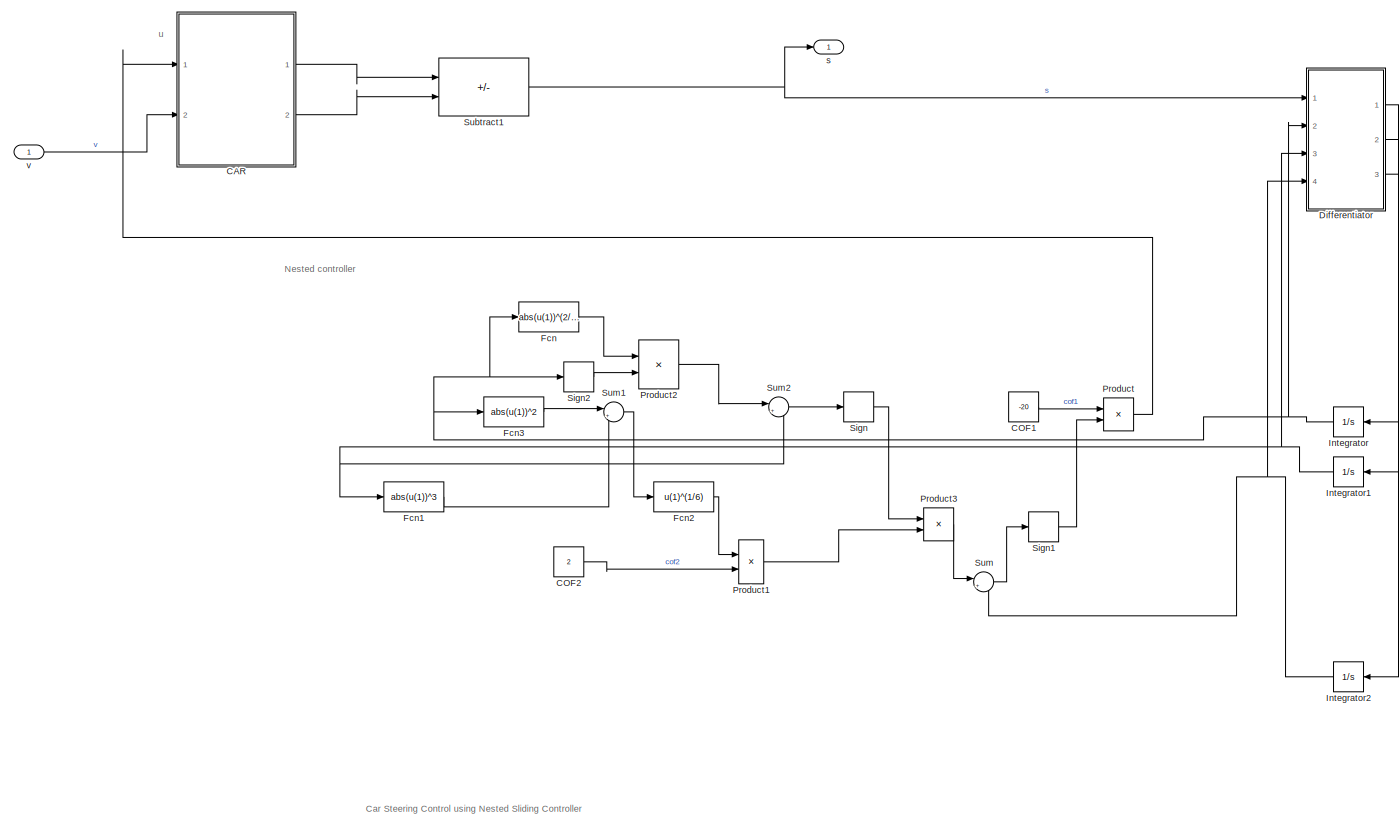
[diagram: root canvas - part 1/1, most of the canvas]
MODEL slx_4d35d0b1646d
KIND model
CONFIG AbsTol = auto
CONFIG EnableMultiTasking = on
CONFIG FixedStep = 1e-4
CONFIG MaxStep = auto
CONFIG MinStep = auto
CONFIG RelTol = 1e-3
CONFIG SampleTimeConstraint = Unconstrained
CONFIG Solver = FixedStepAuto
CONFIG SolverName = FixedStepAuto
CONFIG StartTime = 0.0
CONFIG StopTime = tspan(end)
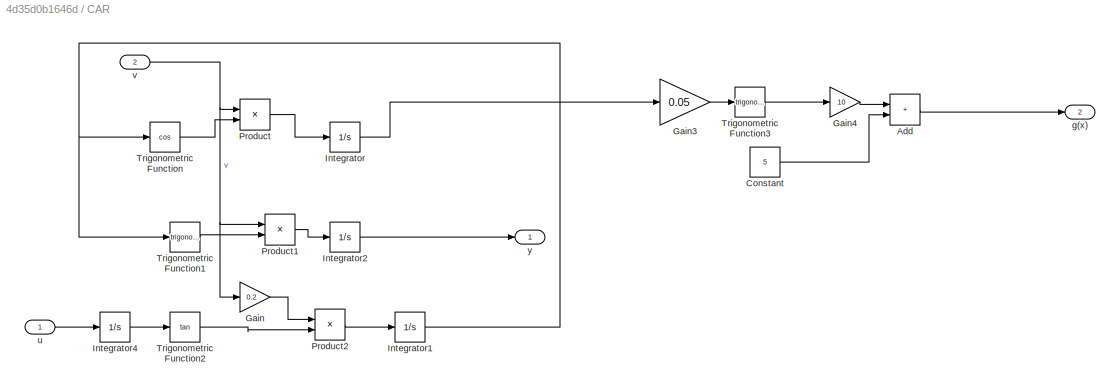
BLOCK [SubSystem] CAR
  Ports = [2, 2]
  RequestExecContextInheritance = off
BLOCK [Sum] CAR/Add
  IconShape = rectangular
  Ports = [2, 1]
BLOCK [Constant] CAR/Constant
  Value = 5
BLOCK [Gain] CAR/Gain
  Gain = 0.2
BLOCK [Gain] CAR/Gain3
  Gain = 0.05
BLOCK [Gain] CAR/Gain4
  Gain = 10
BLOCK [Integrator] CAR/Integrator
  Ports = [1, 1]
BLOCK [Integrator] CAR/Integrator1
  Ports = [1, 1]
BLOCK [Integrator] CAR/Integrator2
  Ports = [1, 1]
BLOCK [Integrator] CAR/Integrator4
  Ports = [1, 1]
BLOCK [Product] CAR/Product
  Ports = [2, 1]
BLOCK [Product] CAR/Product1
  Ports = [2, 1]
BLOCK [Product] CAR/Product2
  Ports = [2, 1]
BLOCK [Trigonometry] CAR/Trigonometric Function
  Operator = cos
  Ports = [1, 1]
BLOCK [Trigonometry] CAR/Trigonometric Function1
  Ports = [1, 1]
BLOCK [Trigonometry] CAR/Trigonometric Function2
  Operator = tan
  Ports = [1, 1]
BLOCK [Trigonometry] CAR/Trigonometric Function3
  Ports = [1, 1]
BLOCK [Outport] CAR/g(x)
  Port = 2
  VectorParamsAs1DForOutWhenUnconnected = off
BLOCK [Inport] CAR/u
BLOCK [Inport] CAR/v
  Port = 2
BLOCK [Outport] CAR/y
  VectorParamsAs1DForOutWhenUnconnected = off
BLOCK [Constant] COF1
  Value = -20
BLOCK [Constant] COF2
  Value = 2
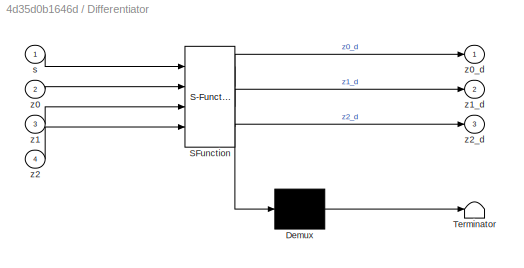
BLOCK [SubSystem] Differentiator
  ErrorFcn = Stateflow.Translate.translate
  PermitHierarchicalResolution = ExplicitOnly
  Ports = [4, 3]
  RequestExecContextInheritance = off
  SFBlockType = MATLAB Function
  TreatAsAtomicUnit = on
BLOCK [Demux] Differentiator/ Demux 
  Outputs = 1
  Ports = [1, 1]
BLOCK [S-Function] Differentiator/ SFunction 
  EnableBusSupport = on
  FunctionName = sf_sfun
  PortCounts = [4 4]
  Ports = [4, 4]
  SFcnIsStateOwnerBlock = off
  SFunctionDeploymentMode = off
  Tag = Stateflow S-Function 2
BLOCK [Terminator] Differentiator/ Terminator 
BLOCK [Inport] Differentiator/s
BLOCK [Inport] Differentiator/z0
  Port = 2
BLOCK [Outport] Differentiator/z0_d
  VectorParamsAs1DForOutWhenUnconnected = off
BLOCK [Inport] Differentiator/z1
  Port = 3
BLOCK [Outport] Differentiator/z1_d
  Port = 2
  VectorParamsAs1DForOutWhenUnconnected = off
BLOCK [Inport] Differentiator/z2
  Port = 4
BLOCK [Outport] Differentiator/z2_d
  Port = 3
  VectorParamsAs1DForOutWhenUnconnected = off
BLOCK [Fcn] Fcn
  Expr = abs(u(1))^(2/3)
BLOCK [Fcn] Fcn1
  Expr = abs(u(1))^3
BLOCK [Fcn] Fcn2
  Expr = u(1)^(1/6)
BLOCK [Fcn] Fcn3
  Expr = abs(u(1))^2
BLOCK [Integrator] Integrator
  NameLocation = top
  Ports = [1, 1]
BLOCK [Integrator] Integrator1
  NameLocation = top
  Ports = [1, 1]
BLOCK [Integrator] Integrator2
  NameLocation = top
  Ports = [1, 1]
BLOCK [Product] Product
  Ports = [2, 1]
BLOCK [Product] Product1
  Ports = [2, 1]
BLOCK [Product] Product2
  Ports = [2, 1]
BLOCK [Product] Product3
  Ports = [2, 1]
BLOCK [Signum] Sign
BLOCK [Signum] Sign1
BLOCK [Signum] Sign2
BLOCK [Sum] Subtract1
  IconShape = rectangular
  Inputs = +-
  Ports = [2, 1]
BLOCK [Sum] Sum
  Inputs = |++
  Ports = [2, 1]
BLOCK [Sum] Sum1
  Inputs = |++
  Ports = [2, 1]
BLOCK [Sum] Sum2
  Inputs = |++
  Ports = [2, 1]
BLOCK [Outport] s
BLOCK [Inport] v
ANNOTATION (root): Car Steering Control using Nested Sliding Controller
ANNOTATION (root): u
ANNOTATION (root): Nested controller
LINE CAR/Add:1 -> CAR/g(x):1
LINE CAR/Constant:1 -> CAR/Add:2
LINE CAR/Gain3:1 -> CAR/Trigonometric Function3:1
LINE CAR/Gain4:1 -> CAR/Add:1
LINE CAR/Gain:1 -> CAR/Product2:1
NET CAR/Integrator1:1 -> CAR/Trigonometric Function1:1, CAR/Trigonometric Function:1
LINE CAR/Integrator2:1 -> CAR/y:1
LINE CAR/Integrator4:1 -> CAR/Trigonometric Function2:1
LINE CAR/Integrator:1 -> CAR/Gain3:1
LINE CAR/Product1:1 -> CAR/Integrator2:1
LINE CAR/Product2:1 -> CAR/Integrator1:1
LINE CAR/Product:1 -> CAR/Integrator:1
LINE CAR/Trigonometric Function1:1 -> CAR/Product1:2
LINE CAR/Trigonometric Function2:1 -> CAR/Product2:2
LINE CAR/Trigonometric Function3:1 -> CAR/Gain4:1
LINE CAR/Trigonometric Function:1 -> CAR/Product:2
LINE CAR/u:1 -> CAR/Integrator4:1
NET CAR/v:1 -> CAR/Gain:1, CAR/Product1:1, CAR/Product:1
LINE CAR:1 -> Subtract1:1
LINE CAR:2 -> Subtract1:2
LINE COF1:1 -> Product:1
LINE COF2:1 -> Product1:2
LINE Differentiator:1 -> Integrator:1
LINE Differentiator:2 -> Integrator1:1
LINE Differentiator:3 -> Integrator2:1
LINE Fcn1:1 -> Sum1:2
LINE Fcn2:1 -> Product1:1
LINE Fcn3:1 -> Sum1:1
LINE Fcn:1 -> Product2:1
NET Integrator1:1 -> Differentiator:3, Fcn1:1, Sum2:2
NET Integrator2:1 -> Differentiator:4, Sum:2
NET Integrator:1 -> Differentiator:2, Fcn3:1, Fcn:1, Sign2:1
LINE Product1:1 -> Product3:2
LINE Product2:1 -> Sum2:1
LINE Product3:1 -> Sum:1
LINE Product:1 -> CAR:1
LINE Sign1:1 -> Product:2
LINE Sign2:1 -> Product2:2
LINE Sign:1 -> Product3:1
NET Subtract1:1 -> Differentiator:1, s:1
LINE Sum1:1 -> Fcn2:1
LINE Sum2:1 -> Sign:1
LINE Sum:1 -> Sign1:1
LINE v:1 -> CAR:2
note: NET lines group one-source signal fan-out (src -> all destinations, sorted); 1:1 wires keep LINE
CHART Differentiator states=1 transitions=1
  STATE_LABEL 'eML_blk_kernel()'
  STATE_LABEL 'SCRIPT:\nfunction [z0_d,z1_d,z2_d]= fcn(s,z0,z1,z2)\n%%% JKD Power and Energy solutions\n%% Differentiator\nv0 = -14.7361*(abs(z0-s))^(2/3)*sign(z0-s)+z1;\nv1 = -30*(abs(z1-v0))^(1/2)*sign(z1-v0)+z2;\nz0_d = v0;\nz1_d  = v1;\nz2_d  = -400*sign(z2-v1);\nend'
CHART  states=0 transitions=0
